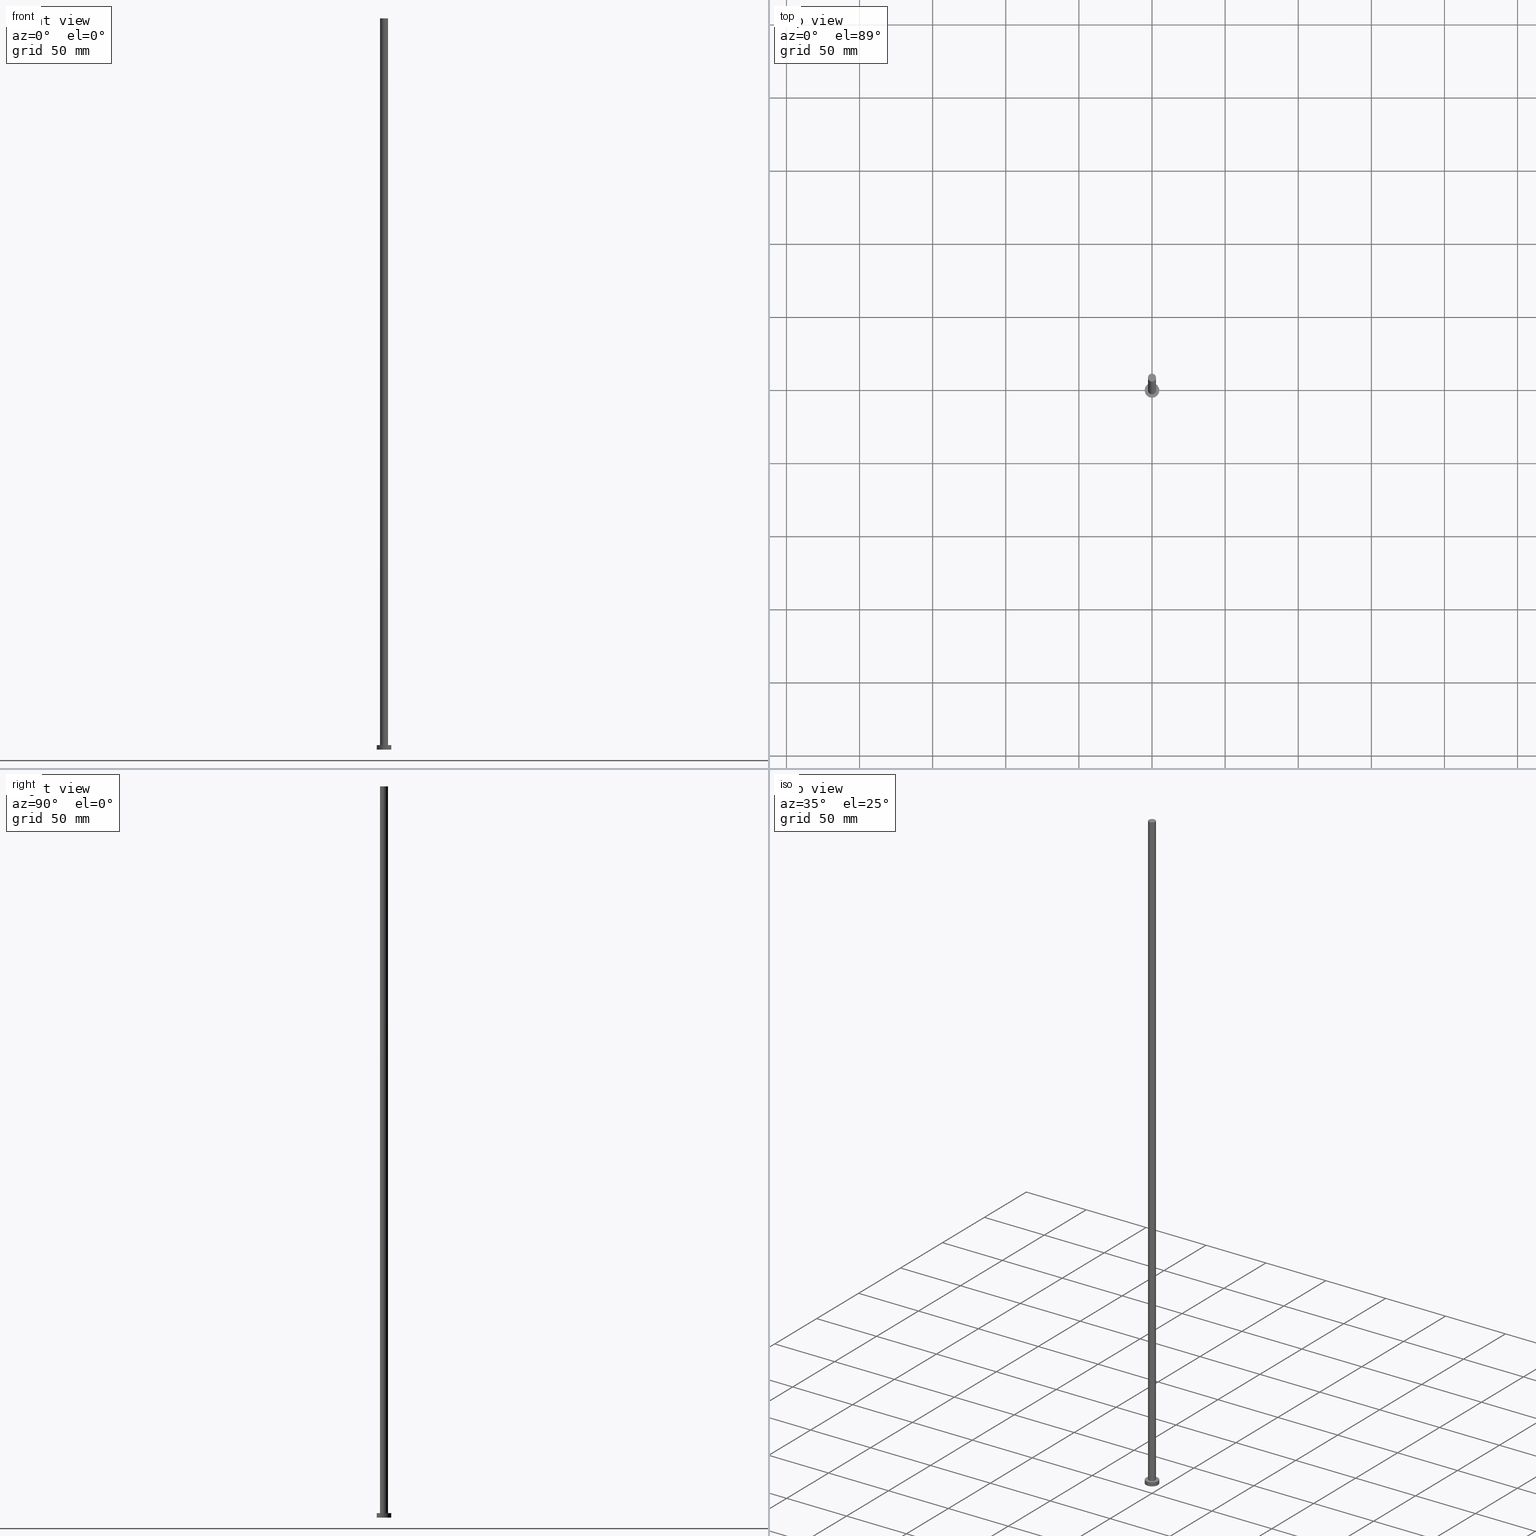
[diagram: canonical four-view strip — front | top / right | iso, engineering-drawing reading convention]
A machine part, canonical four-view strip (front | top / right | iso — engineering-drawing reading convention). The complete STEP part file that produces these views, byte-faithful:
ISO-10303-21;
HEADER;
FILE_DESCRIPTION (( 'STEP AP203' ),
    '1' );
FILE_NAME ('04b0.STEP',
    '2023-02-12T12:20:46',
    ( '' ),
    ( '' ),
    'SwSTEP 2.0',
    'SolidWorks 2019',
    '' );
FILE_SCHEMA (( 'CONFIG_CONTROL_DESIGN' ));
ENDSEC;

DATA;
#1 = APPROVAL_ROLE ( '' ) ;
#2 = DIRECTION ( 'NONE',  ( 1.000000000000000000, 0.000000000000000000, 0.000000000000000000 ) ) ;
#3 = CARTESIAN_POINT ( 'NONE',  ( 5.000000000000000000, 6.123233995736766282E-16, 3.000000000000000000 ) ) ;
#4 = ORIENTED_EDGE ( 'NONE', *, *, #166, .T. ) ;
#5 = ORIENTED_EDGE ( 'NONE', *, *, #64, .F. ) ;
#6 = CIRCLE ( 'NONE', #191, 2.750000000000000000 ) ;
#7 = CIRCLE ( 'NONE', #113, 2.750000000000000000 ) ;
#8 = CC_DESIGN_DATE_AND_TIME_ASSIGNMENT ( #161, #61, ( #69 ) ) ;
#9 = ORIENTED_EDGE ( 'NONE', *, *, #138, .T. ) ;
#10 = VERTEX_POINT ( 'NONE', #247 ) ;
#11 = CC_DESIGN_SECURITY_CLASSIFICATION ( #69, ( #245 ) ) ;
#12 = CARTESIAN_POINT ( 'NONE',  ( 5.000000000000000000, 6.123233995736766282E-16, 3.000000000000000000 ) ) ;
#13 = PRODUCT ( '04b0', '04b0', '', ( #235 ) ) ;
#14 = VERTEX_POINT ( 'NONE', #114 ) ;
#15 = APPLICATION_CONTEXT ( 'configuration controlled 3d designs of mechanical parts and assemblies' ) ;
#16 = ADVANCED_BREP_SHAPE_REPRESENTATION ( '04b0', ( #31, #172 ), #213 ) ;
#17 = DIRECTION ( 'NONE',  ( -1.000000000000000000, 0.000000000000000000, 0.000000000000000000 ) ) ;
#18 = CALENDAR_DATE ( 2023, 12, 2 ) ;
#19 = FACE_OUTER_BOUND ( 'NONE', #152, .T. ) ;
#20 = CC_DESIGN_PERSON_AND_ORGANIZATION_ASSIGNMENT ( #26, #252, ( #69 ) ) ;
#21 = PERSON_AND_ORGANIZATION_ROLE ( 'design_supplier' ) ;
#22 = APPROVAL_DATE_TIME ( #251, #195 ) ;
#23 = APPROVAL_ROLE ( '' ) ;
#24 = VECTOR ( 'NONE', #28, 1000.000000000000000 ) ;
#25 = CARTESIAN_POINT ( 'NONE',  ( -2.750000000000000000, 0.000000000000000000, 500.0000000000000000 ) ) ;
#26 = PERSON_AND_ORGANIZATION ( #203, #92 ) ;
#27 = LOCAL_TIME ( 13, 20, 46.00000000000000000, #41 ) ;
#28 = DIRECTION ( 'NONE',  ( -0.000000000000000000, -0.000000000000000000, -1.000000000000000000 ) ) ;
#29 = ADVANCED_FACE ( 'NONE', ( #248 ), #193, .T. ) ;
#30 = ORIENTED_EDGE ( 'NONE', *, *, #44, .T. ) ;
#31 = MANIFOLD_SOLID_BREP ( 'P�idat vysunut�m3', #181 ) ;
#32 = ORIENTED_EDGE ( 'NONE', *, *, #210, .F. ) ;
#33 = CARTESIAN_POINT ( 'NONE',  ( 2.750000000000000000, 3.367778697655220519E-16, 500.0000000000000000 ) ) ;
#34 = DIRECTION ( 'NONE',  ( 1.000000000000000000, 0.000000000000000000, 0.000000000000000000 ) ) ;
#35 = CARTESIAN_POINT ( 'NONE',  ( 2.750000000000000000, 3.367778697655220519E-16, 3.000000000000000000 ) ) ;
#36 = ADVANCED_FACE ( 'NONE', ( #19 ), #74, .F. ) ;
#37 = PERSON_AND_ORGANIZATION ( #203, #92 ) ;
#38 = SECURITY_CLASSIFICATION_LEVEL ( 'unclassified' ) ;
#39 = UNCERTAINTY_MEASURE_WITH_UNIT (LENGTH_MEASURE( 1.000000000000000082E-05 ), #66, 'distance_accuracy_value', 'NONE');
#40 = DATE_AND_TIME ( #78, #206 ) ;
#41 = COORDINATED_UNIVERSAL_TIME_OFFSET ( 1, 0, .AHEAD. ) ;
#42 = CARTESIAN_POINT ( 'NONE',  ( 0.000000000000000000, 0.000000000000000000, 3.000000000000000000 ) ) ;
#43 = CC_DESIGN_PERSON_AND_ORGANIZATION_ASSIGNMENT ( #62, #98, ( #245 ) ) ;
#44 = EDGE_CURVE ( 'NONE', #209, #47, #215, .T. ) ;
#45 = ORIENTED_EDGE ( 'NONE', *, *, #108, .F. ) ;
#46 = DIRECTION ( 'NONE',  ( 1.000000000000000000, 0.000000000000000000, -0.000000000000000000 ) ) ;
#47 = VERTEX_POINT ( 'NONE', #35 ) ;
#48 = ORIENTED_EDGE ( 'NONE', *, *, #210, .T. ) ;
#49 = ORIENTED_EDGE ( 'NONE', *, *, #44, .F. ) ;
#50 = ORIENTED_EDGE ( 'NONE', *, *, #157, .F. ) ;
#51 = PRODUCT_DEFINITION_SHAPE ( 'NONE', 'NONE',  #130 ) ;
#52 = CARTESIAN_POINT ( 'NONE',  ( 0.000000000000000000, 0.000000000000000000, 3.000000000000000000 ) ) ;
#53 = DIRECTION ( 'NONE',  ( 1.000000000000000000, 0.000000000000000000, -0.000000000000000000 ) ) ;
#54 = VECTOR ( 'NONE', #76, 1000.000000000000000 ) ;
#55 = AXIS2_PLACEMENT_3D ( 'NONE', #156, #133, #95 ) ;
#56 = ORIENTED_EDGE ( 'NONE', *, *, #134, .T. ) ;
#57 = PERSON_AND_ORGANIZATION_ROLE ( 'creator' ) ;
#58 = DESIGN_CONTEXT ( 'detailed design', #15, 'design' ) ;
#59 = PERSON_AND_ORGANIZATION ( #203, #92 ) ;
#60 = APPROVAL_PERSON_ORGANIZATION ( #141, #221, #1 ) ;
#61 = DATE_TIME_ROLE ( 'classification_date' ) ;
#62 = PERSON_AND_ORGANIZATION ( #203, #92 ) ;
#63 = DIRECTION ( 'NONE',  ( -1.000000000000000000, 0.000000000000000000, 0.000000000000000000 ) ) ;
#64 = EDGE_CURVE ( 'NONE', #47, #207, #7, .T. ) ;
#65 = DIRECTION ( 'NONE',  ( -1.000000000000000000, 0.000000000000000000, 0.000000000000000000 ) ) ;
#66 =( LENGTH_UNIT ( ) NAMED_UNIT ( * ) SI_UNIT ( .MILLI., .METRE. ) );
#67 = DIRECTION ( 'NONE',  ( 1.000000000000000000, 0.000000000000000000, 0.000000000000000000 ) ) ;
#68 = AXIS2_PLACEMENT_3D ( 'NONE', #144, #146, #165 ) ;
#69 = SECURITY_CLASSIFICATION ( '', '', #38 ) ;
#70 = EDGE_LOOP ( 'NONE', ( #228, #32, #128, #135 ) ) ;
#71 = ORIENTED_EDGE ( 'NONE', *, *, #157, .T. ) ;
#72 = ADVANCED_FACE ( 'NONE', ( #175 ), #233, .T. ) ;
#73 = DIRECTION ( 'NONE',  ( 1.000000000000000000, 0.000000000000000000, 0.000000000000000000 ) ) ;
#74 = PLANE ( 'NONE',  #100 ) ;
#75 = CIRCLE ( 'NONE', #155, 5.000000000000000000 ) ;
#76 = DIRECTION ( 'NONE',  ( -0.000000000000000000, -0.000000000000000000, -1.000000000000000000 ) ) ;
#77 = COORDINATED_UNIVERSAL_TIME_OFFSET ( 1, 0, .AHEAD. ) ;
#78 = CALENDAR_DATE ( 2023, 12, 2 ) ;
#79 = CIRCLE ( 'NONE', #99, 2.750000000000000000 ) ;
#80 = CALENDAR_DATE ( 2023, 12, 2 ) ;
#81 = DATE_AND_TIME ( #198, #255 ) ;
#82 = DIRECTION ( 'NONE',  ( 0.000000000000000000, 0.000000000000000000, 1.000000000000000000 ) ) ;
#83 = CARTESIAN_POINT ( 'NONE',  ( 0.000000000000000000, 0.000000000000000000, 3.000000000000000000 ) ) ;
#84 = CC_DESIGN_PERSON_AND_ORGANIZATION_ASSIGNMENT ( #220, #21, ( #245 ) ) ;
#85 = EDGE_CURVE ( 'NONE', #149, #10, #200, .T. ) ;
#86 = DIRECTION ( 'NONE',  ( 0.000000000000000000, 0.000000000000000000, 1.000000000000000000 ) ) ;
#87 = FACE_BOUND ( 'NONE', #153, .T. ) ;
#88 = ADVANCED_FACE ( 'NONE', ( #176 ), #115, .T. ) ;
#89 = ORIENTED_EDGE ( 'NONE', *, *, #117, .F. ) ;
#90 = APPROVAL ( #143, 'NEUR�EN�' ) ;
#91 = ORIENTED_EDGE ( 'NONE', *, *, #186, .F. ) ;
#92 = ORGANIZATION ( 'NEUR�EN�', 'NEUR�EN�', '' ) ;
#93 = CARTESIAN_POINT ( 'NONE',  ( -5.000000000000000000, 0.000000000000000000, 3.000000000000000000 ) ) ;
#94 = CARTESIAN_POINT ( 'NONE',  ( 0.000000000000000000, 0.000000000000000000, 3.000000000000000000 ) ) ;
#95 = DIRECTION ( 'NONE',  ( -1.000000000000000000, 0.000000000000000000, 0.000000000000000000 ) ) ;
#96 = DATE_AND_TIME ( #218, #124 ) ;
#97 = DIRECTION ( 'NONE',  ( -0.000000000000000000, -0.000000000000000000, -1.000000000000000000 ) ) ;
#98 = PERSON_AND_ORGANIZATION_ROLE ( 'creator' ) ;
#99 = AXIS2_PLACEMENT_3D ( 'NONE', #119, #86, #67 ) ;
#100 = AXIS2_PLACEMENT_3D ( 'NONE', #230, #232, #53 ) ;
#101 = FACE_OUTER_BOUND ( 'NONE', #70, .T. ) ;
#102 = CARTESIAN_POINT ( 'NONE',  ( 0.000000000000000000, 0.000000000000000000, 0.000000000000000000 ) ) ;
#103 = DIRECTION ( 'NONE',  ( 1.000000000000000000, 0.000000000000000000, 0.000000000000000000 ) ) ;
#104 = APPLICATION_CONTEXT ( 'configuration controlled 3d designs of mechanical parts and assemblies' ) ;
#105 =( NAMED_UNIT ( * ) PLANE_ANGLE_UNIT ( ) SI_UNIT ( $, .RADIAN. ) );
#106 = CC_DESIGN_APPROVAL ( #195, ( #130 ) ) ;
#107 = PLANE ( 'NONE',  #231 ) ;
#108 = EDGE_CURVE ( 'NONE', #10, #150, #214, .T. ) ;
#109 = VERTEX_POINT ( 'NONE', #178 ) ;
#110 = CIRCLE ( 'NONE', #212, 2.750000000000000000 ) ;
#111 = LINE ( 'NONE', #12, #199 ) ;
#112 = APPROVAL_PERSON_ORGANIZATION ( #118, #195, #23 ) ;
#113 = AXIS2_PLACEMENT_3D ( 'NONE', #94, #197, #158 ) ;
#114 = CARTESIAN_POINT ( 'NONE',  ( -2.750000000000000000, 0.000000000000000000, 500.0000000000000000 ) ) ;
#115 = PLANE ( 'NONE',  #254 ) ;
#116 = CARTESIAN_POINT ( 'NONE',  ( 0.000000000000000000, 0.000000000000000000, 500.0000000000000000 ) ) ;
#117 = EDGE_CURVE ( 'NONE', #209, #14, #110, .T. ) ;
#118 = PERSON_AND_ORGANIZATION ( #203, #92 ) ;
#119 = CARTESIAN_POINT ( 'NONE',  ( 0.000000000000000000, 0.000000000000000000, 500.0000000000000000 ) ) ;
#120 = CIRCLE ( 'NONE', #68, 5.000000000000000000 ) ;
#121 = APPROVAL_DATE_TIME ( #40, #90 ) ;
#122 = VECTOR ( 'NONE', #216, 1000.000000000000000 ) ;
#123 = DIRECTION ( 'NONE',  ( 0.000000000000000000, 0.000000000000000000, 1.000000000000000000 ) ) ;
#124 = LOCAL_TIME ( 13, 20, 46.00000000000000000, #77 ) ;
#125 = ORIENTED_EDGE ( 'NONE', *, *, #138, .F. ) ;
#126 = DIRECTION ( 'NONE',  ( 1.000000000000000000, 0.000000000000000000, 0.000000000000000000 ) ) ;
#127 = EDGE_LOOP ( 'NONE', ( #168, #56, #4, #45 ) ) ;
#128 = ORIENTED_EDGE ( 'NONE', *, *, #108, .T. ) ;
#129 = ORIENTED_EDGE ( 'NONE', *, *, #166, .F. ) ;
#130 = PRODUCT_DEFINITION ( 'NEZN�M�', '', #245, #58 ) ;
#131 = DIRECTION ( 'NONE',  ( 0.000000000000000000, 0.000000000000000000, 1.000000000000000000 ) ) ;
#132 = DIRECTION ( 'NONE',  ( 1.000000000000000000, 0.000000000000000000, -0.000000000000000000 ) ) ;
#133 = DIRECTION ( 'NONE',  ( -0.000000000000000000, -0.000000000000000000, -1.000000000000000000 ) ) ;
#134 = EDGE_CURVE ( 'NONE', #149, #109, #111, .T. ) ;
#135 = ORIENTED_EDGE ( 'NONE', *, *, #227, .T. ) ;
#136 = SHAPE_DEFINITION_REPRESENTATION ( #51, #16 ) ;
#137 = CC_DESIGN_DATE_AND_TIME_ASSIGNMENT ( #81, #159, ( #130 ) ) ;
#138 = EDGE_CURVE ( 'NONE', #207, #47, #6, .T. ) ;
#139 = APPROVAL_PERSON_ORGANIZATION ( #59, #90, #162 ) ;
#140 = DIRECTION ( 'NONE',  ( 1.000000000000000000, 0.000000000000000000, 0.000000000000000000 ) ) ;
#141 = PERSON_AND_ORGANIZATION ( #203, #92 ) ;
#142 = CARTESIAN_POINT ( 'NONE',  ( -5.000000000000000000, 0.000000000000000000, 0.000000000000000000 ) ) ;
#143 = APPROVAL_STATUS ( 'not_yet_approved' ) ;
#144 = CARTESIAN_POINT ( 'NONE',  ( 0.000000000000000000, 0.000000000000000000, 3.000000000000000000 ) ) ;
#145 = CARTESIAN_POINT ( 'NONE',  ( -2.750000000000000000, 0.000000000000000000, 3.000000000000000000 ) ) ;
#146 = DIRECTION ( 'NONE',  ( 0.000000000000000000, 0.000000000000000000, 1.000000000000000000 ) ) ;
#147 = AXIS2_PLACEMENT_3D ( 'NONE', #167, #183, #65 ) ;
#148 = CC_DESIGN_APPROVAL ( #221, ( #69 ) ) ;
#149 = VERTEX_POINT ( 'NONE', #3 ) ;
#150 = VERTEX_POINT ( 'NONE', #142 ) ;
#151 = PRODUCT_RELATED_PRODUCT_CATEGORY ( 'detail', '', ( #13 ) ) ;
#152 = EDGE_LOOP ( 'NONE', ( #170, #129 ) ) ;
#153 = EDGE_LOOP ( 'NONE', ( #125, #5 ) ) ;
#154 = DIRECTION ( 'NONE',  ( -0.000000000000000000, -0.000000000000000000, -1.000000000000000000 ) ) ;
#155 = AXIS2_PLACEMENT_3D ( 'NONE', #224, #222, #126 ) ;
#156 = CARTESIAN_POINT ( 'NONE',  ( 0.000000000000000000, 0.000000000000000000, 500.0000000000000000 ) ) ;
#157 = EDGE_CURVE ( 'NONE', #14, #209, #79, .T. ) ;
#158 = DIRECTION ( 'NONE',  ( 1.000000000000000000, 0.000000000000000000, 0.000000000000000000 ) ) ;
#159 = DATE_TIME_ROLE ( 'creation_date' ) ;
#160 = APPLICATION_PROTOCOL_DEFINITION ( 'international standard', 'config_control_design', 1994, #15 ) ;
#161 = DATE_AND_TIME ( #80, #27 ) ;
#162 = APPROVAL_ROLE ( '' ) ;
#163 = DIRECTION ( 'NONE',  ( -0.000000000000000000, -0.000000000000000000, -1.000000000000000000 ) ) ;
#164 = LINE ( 'NONE', #25, #24 ) ;
#165 = DIRECTION ( 'NONE',  ( 1.000000000000000000, 0.000000000000000000, 0.000000000000000000 ) ) ;
#166 = EDGE_CURVE ( 'NONE', #109, #150, #243, .T. ) ;
#167 = CARTESIAN_POINT ( 'NONE',  ( 0.000000000000000000, 0.000000000000000000, 3.000000000000000000 ) ) ;
#168 = ORIENTED_EDGE ( 'NONE', *, *, #85, .F. ) ;
#169 = AXIS2_PLACEMENT_3D ( 'NONE', #52, #131, #34 ) ;
#170 = ORIENTED_EDGE ( 'NONE', *, *, #227, .F. ) ;
#171 = ORIENTED_EDGE ( 'NONE', *, *, #64, .T. ) ;
#172 = AXIS2_PLACEMENT_3D ( 'NONE', #102, #180, #140 ) ;
#173 = EDGE_LOOP ( 'NONE', ( #49, #50, #194, #9 ) ) ;
#174 = CARTESIAN_POINT ( 'NONE',  ( 0.000000000000000000, 0.000000000000000000, 500.0000000000000000 ) ) ;
#175 = FACE_OUTER_BOUND ( 'NONE', #246, .T. ) ;
#176 = FACE_OUTER_BOUND ( 'NONE', #190, .T. ) ;
#177 = APPROVAL_DATE_TIME ( #96, #221 ) ;
#178 = CARTESIAN_POINT ( 'NONE',  ( 5.000000000000000000, 6.123233995736766282E-16, 0.000000000000000000 ) ) ;
#179 = APPLICATION_PROTOCOL_DEFINITION ( 'international standard', 'config_control_design', 1994, #104 ) ;
#180 = DIRECTION ( 'NONE',  ( 0.000000000000000000, 0.000000000000000000, 1.000000000000000000 ) ) ;
#181 = CLOSED_SHELL ( 'NONE', ( #72, #202, #204, #192, #36, #29, #88 ) ) ;
#182 = COORDINATED_UNIVERSAL_TIME_OFFSET ( 1, 0, .AHEAD. ) ;
#183 = DIRECTION ( 'NONE',  ( -0.000000000000000000, -0.000000000000000000, -1.000000000000000000 ) ) ;
#184 = APPROVAL_STATUS ( 'not_yet_approved' ) ;
#185 = CYLINDRICAL_SURFACE ( 'NONE', #225, 5.000000000000000000 ) ;
#186 = EDGE_CURVE ( 'NONE', #14, #207, #164, .T. ) ;
#187 = DIRECTION ( 'NONE',  ( 0.000000000000000000, 0.000000000000000000, 1.000000000000000000 ) ) ;
#188 = ORIENTED_EDGE ( 'NONE', *, *, #117, .T. ) ;
#189 = AXIS2_PLACEMENT_3D ( 'NONE', #219, #82, #103 ) ;
#190 = EDGE_LOOP ( 'NONE', ( #71, #188 ) ) ;
#191 = AXIS2_PLACEMENT_3D ( 'NONE', #42, #123, #2 ) ;
#192 = ADVANCED_FACE ( 'NONE', ( #87, #240 ), #107, .T. ) ;
#193 = CYLINDRICAL_SURFACE ( 'NONE', #244, 2.750000000000000000 ) ;
#194 = ORIENTED_EDGE ( 'NONE', *, *, #186, .T. ) ;
#195 = APPROVAL ( #201, 'NEUR�EN�' ) ;
#196 = CARTESIAN_POINT ( 'NONE',  ( 0.000000000000000000, 0.000000000000000000, 500.0000000000000000 ) ) ;
#197 = DIRECTION ( 'NONE',  ( 0.000000000000000000, 0.000000000000000000, 1.000000000000000000 ) ) ;
#198 = CALENDAR_DATE ( 2023, 12, 2 ) ;
#199 = VECTOR ( 'NONE', #154, 1000.000000000000000 ) ;
#200 = CIRCLE ( 'NONE', #169, 5.000000000000000000 ) ;
#201 = APPROVAL_STATUS ( 'not_yet_approved' ) ;
#202 = ADVANCED_FACE ( 'NONE', ( #205 ), #185, .T. ) ;
#203 = PERSON ( 'NEUR�EN�', 'NEUR�EN�', 'NEUR�EN�', ('NEUR�EN�'), ('NEUR�EN�'), ('NEUR�EN�') ) ;
#204 = ADVANCED_FACE ( 'NONE', ( #101 ), #242, .T. ) ;
#205 = FACE_OUTER_BOUND ( 'NONE', #127, .T. ) ;
#206 = LOCAL_TIME ( 13, 20, 46.00000000000000000, #238 ) ;
#207 = VERTEX_POINT ( 'NONE', #145 ) ;
#208 = EDGE_LOOP ( 'NONE', ( #48, #229 ) ) ;
#209 = VERTEX_POINT ( 'NONE', #239 ) ;
#210 = EDGE_CURVE ( 'NONE', #10, #149, #120, .T. ) ;
#211 = DIRECTION ( 'NONE',  ( 0.000000000000000000, 0.000000000000000000, 1.000000000000000000 ) ) ;
#212 = AXIS2_PLACEMENT_3D ( 'NONE', #174, #211, #73 ) ;
#213 =( GEOMETRIC_REPRESENTATION_CONTEXT ( 3 ) GLOBAL_UNCERTAINTY_ASSIGNED_CONTEXT ( ( #39 ) ) GLOBAL_UNIT_ASSIGNED_CONTEXT ( ( #66, #105, #223 ) ) REPRESENTATION_CONTEXT ( 'NONE', 'WORKASPACE' ) );
#214 = LINE ( 'NONE', #93, #54 ) ;
#215 = LINE ( 'NONE', #33, #122 ) ;
#216 = DIRECTION ( 'NONE',  ( -0.000000000000000000, -0.000000000000000000, -1.000000000000000000 ) ) ;
#217 = PERSON_AND_ORGANIZATION ( #203, #92 ) ;
#218 = CALENDAR_DATE ( 2023, 12, 2 ) ;
#219 = CARTESIAN_POINT ( 'NONE',  ( 0.000000000000000000, 0.000000000000000000, 0.000000000000000000 ) ) ;
#220 = PERSON_AND_ORGANIZATION ( #203, #92 ) ;
#221 = APPROVAL ( #184, 'NEUR�EN�' ) ;
#222 = DIRECTION ( 'NONE',  ( 0.000000000000000000, 0.000000000000000000, 1.000000000000000000 ) ) ;
#223 =( NAMED_UNIT ( * ) SI_UNIT ( $, .STERADIAN. ) SOLID_ANGLE_UNIT ( ) );
#224 = CARTESIAN_POINT ( 'NONE',  ( 0.000000000000000000, 0.000000000000000000, 0.000000000000000000 ) ) ;
#225 = AXIS2_PLACEMENT_3D ( 'NONE', #83, #163, #63 ) ;
#226 = CC_DESIGN_APPROVAL ( #90, ( #245 ) ) ;
#227 = EDGE_CURVE ( 'NONE', #150, #109, #75, .T. ) ;
#228 = ORIENTED_EDGE ( 'NONE', *, *, #134, .F. ) ;
#229 = ORIENTED_EDGE ( 'NONE', *, *, #85, .T. ) ;
#230 = CARTESIAN_POINT ( 'NONE',  ( 0.000000000000000000, 0.000000000000000000, 0.000000000000000000 ) ) ;
#231 = AXIS2_PLACEMENT_3D ( 'NONE', #241, #187, #46 ) ;
#232 = DIRECTION ( 'NONE',  ( 0.000000000000000000, 0.000000000000000000, 1.000000000000000000 ) ) ;
#233 = CYLINDRICAL_SURFACE ( 'NONE', #55, 2.750000000000000000 ) ;
#234 = CC_DESIGN_PERSON_AND_ORGANIZATION_ASSIGNMENT ( #217, #250, ( #13 ) ) ;
#235 = MECHANICAL_CONTEXT ( 'NONE', #104, 'mechanical' ) ;
#236 = COORDINATED_UNIVERSAL_TIME_OFFSET ( 1, 0, .AHEAD. ) ;
#237 = LOCAL_TIME ( 13, 20, 46.00000000000000000, #236 ) ;
#238 = COORDINATED_UNIVERSAL_TIME_OFFSET ( 1, 0, .AHEAD. ) ;
#239 = CARTESIAN_POINT ( 'NONE',  ( 2.750000000000000000, 3.367778697655220519E-16, 500.0000000000000000 ) ) ;
#240 = FACE_OUTER_BOUND ( 'NONE', #208, .T. ) ;
#241 = CARTESIAN_POINT ( 'NONE',  ( 0.000000000000000000, 0.000000000000000000, 3.000000000000000000 ) ) ;
#242 = CYLINDRICAL_SURFACE ( 'NONE', #147, 5.000000000000000000 ) ;
#243 = CIRCLE ( 'NONE', #189, 5.000000000000000000 ) ;
#244 = AXIS2_PLACEMENT_3D ( 'NONE', #116, #97, #17 ) ;
#245 = PRODUCT_DEFINITION_FORMATION_WITH_SPECIFIED_SOURCE ( 'LIBOVOLN�', '', #13, .NOT_KNOWN. ) ;
#246 = EDGE_LOOP ( 'NONE', ( #89, #30, #171, #91 ) ) ;
#247 = CARTESIAN_POINT ( 'NONE',  ( -5.000000000000000000, 0.000000000000000000, 3.000000000000000000 ) ) ;
#248 = FACE_OUTER_BOUND ( 'NONE', #173, .T. ) ;
#249 = DIRECTION ( 'NONE',  ( 0.000000000000000000, 0.000000000000000000, 1.000000000000000000 ) ) ;
#250 = PERSON_AND_ORGANIZATION_ROLE ( 'design_owner' ) ;
#251 = DATE_AND_TIME ( #18, #237 ) ;
#252 = PERSON_AND_ORGANIZATION_ROLE ( 'classification_officer' ) ;
#253 = CC_DESIGN_PERSON_AND_ORGANIZATION_ASSIGNMENT ( #37, #57, ( #130 ) ) ;
#254 = AXIS2_PLACEMENT_3D ( 'NONE', #196, #249, #132 ) ;
#255 = LOCAL_TIME ( 13, 20, 46.00000000000000000, #182 ) ;
ENDSEC;
END-ISO-10303-21;
